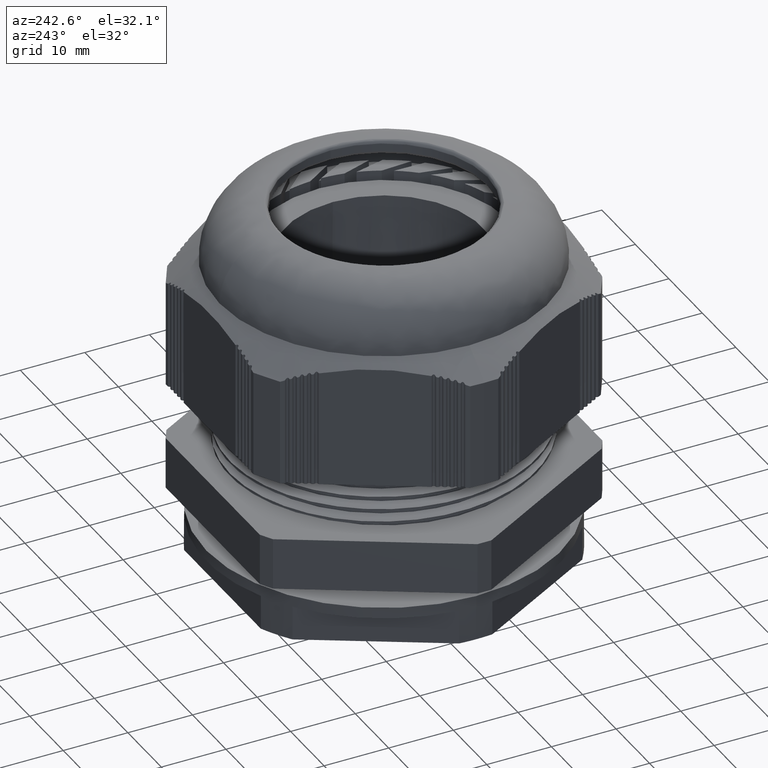
[diagram: clean part render]
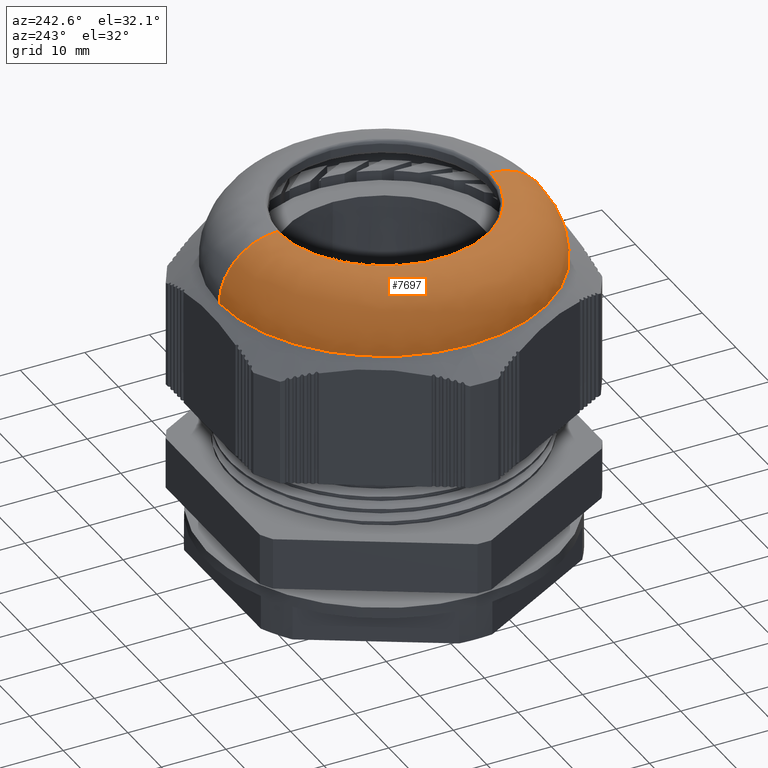
[diagram: same view with one face highlighted and labeled with its STEP entity id]
A machine part, auxiliary view. The second image highlights one B-rep face of the part: STEP entity #7697.
In plain terms, the highlighted face is a freeform B-spline surface patch.
Its self-contained STEP definition (entity closure, byte-faithful):
#648 = CARTESIAN_POINT ( 'NONE',  ( 3.122849337825750200E-015, 25.50000000000000000, 49.93713426674091200 ) ) ;
#650 = CARTESIAN_POINT ( 'NONE',  ( -2.584435626409810100E-046, -25.49999999999999600, 49.93713426674089800 ) ) ;
#661 = CARTESIAN_POINT ( 'NONE',  ( 2.571758278209440900E-015, 16.50000000000000000, 58.93713426674092700 ) ) ;
#689 = CARTESIAN_POINT ( 'NONE',  ( -25.49999999999999600, -4.429638872090642500E-030, 49.93713426674090500 ) ) ;
#697 = CARTESIAN_POINT ( 'NONE',  ( -2.350988701644649500E-032, -16.50000000000000000, 58.93713426674091200 ) ) ;
#7697 = ADVANCED_FACE ( 'NONE', ( #15465 ), #15350, .T. ) ;
#9114 = AXIS2_PLACEMENT_3D ( 'NONE', #23341, #23343, #23421 ) ;
#9149 = CIRCLE ( 'NONE', #9114, 25.49999999999999600 ) ;
#9184 = AXIS2_PLACEMENT_3D ( 'NONE', #23608, #23600, #23595 ) ;
#9194 = CIRCLE ( 'NONE', #9184, 8.999999999999994700 ) ;
#9195 = AXIS2_PLACEMENT_3D ( 'NONE', #23554, #23527, #23547 ) ;
#9215 = CIRCLE ( 'NONE', #9195, 16.50000000000000000 ) ;
#9216 = CIRCLE ( 'NONE', #9217, 8.999999999999998200 ) ;
#9217 = AXIS2_PLACEMENT_3D ( 'NONE', #23574, #23593, #23571 ) ;
#9248 = CIRCLE ( 'NONE', #9270, 25.49999999999999600 ) ;
#9270 = AXIS2_PLACEMENT_3D ( 'NONE', #23744, #23722, #23751 ) ;
#9820 = EDGE_CURVE ( 'NONE', #10461, #10521, #9149, .T. ) ;
#9847 = EDGE_CURVE ( 'NONE', #10483, #10506, #9215, .T. ) ;
#9857 = EDGE_CURVE ( 'NONE', #10483, #10461, #9216, .T. ) ;
#9866 = EDGE_CURVE ( 'NONE', #10506, #10498, #9194, .T. ) ;
#9890 = EDGE_CURVE ( 'NONE', #10521, #10498, #9248, .T. ) ;
#10461 = VERTEX_POINT ( 'NONE', #648 ) ;
#10483 = VERTEX_POINT ( 'NONE', #661 ) ;
#10498 = VERTEX_POINT ( 'NONE', #650 ) ;
#10506 = VERTEX_POINT ( 'NONE', #697 ) ;
#10521 = VERTEX_POINT ( 'NONE', #689 ) ;
#11130 = ORIENTED_EDGE ( 'NONE', *, *, #9820, .T. ) ;
#11137 = ORIENTED_EDGE ( 'NONE', *, *, #9890, .T. ) ;
#11147 = ORIENTED_EDGE ( 'NONE', *, *, #9866, .F. ) ;
#11158 = ORIENTED_EDGE ( 'NONE', *, *, #9847, .F. ) ;
#11192 = ORIENTED_EDGE ( 'NONE', *, *, #9857, .T. ) ;
#15350 =( BOUNDED_SURFACE ( )  B_SPLINE_SURFACE ( 3, 3, ( 
 ( #15506, #15468, #15476, #15496 ),
 ( #15508, #15503, #15493, #15491 ),
 ( #15507, #15485, #15466, #15494 ),
 ( #15505, #15509, #15481, #15469 ) ),
 .UNSPECIFIED., .F., .F., .T. ) 
 B_SPLINE_SURFACE_WITH_KNOTS ( ( 4, 4 ),
 ( 4, 4 ),
 ( 0.0000000000000000000, 1.000000000000000000 ),
 ( 0.0000000000000000000, 1.000000000000000000 ),
 .UNSPECIFIED. ) 
 GEOMETRIC_REPRESENTATION_ITEM ( )  RATIONAL_B_SPLINE_SURFACE ( (
 ( 1.000000000000000000, 0.3333333333333334300, 0.3333333333333334300, 1.000000000000000000),
 ( 0.8047378541243648300, 0.2682459513747883500, 0.2682459513747883500, 0.8047378541243648300),
 ( 0.8047378541243648300, 0.2682459513747883500, 0.2682459513747883500, 0.8047378541243648300),
 ( 1.000000000000000000, 0.3333333333333334300, 0.3333333333333334300, 1.000000000000000000) ) ) 
 REPRESENTATION_ITEM ( '' )  SURFACE ( )  );
#15465 = FACE_OUTER_BOUND ( 'NONE', #16954, .T. ) ;
#15466 = CARTESIAN_POINT ( 'NONE',  ( -50.99999999999998600, -25.49999999999998600, 55.20921220538304700 ) ) ;
#15468 = CARTESIAN_POINT ( 'NONE',  ( -32.99999999999997200, 16.49999999999999600, 58.93713426674089800 ) ) ;
#15469 = CARTESIAN_POINT ( 'NONE',  ( -6.245698675651501200E-015, -25.50000000000000000, 49.93713426674089800 ) ) ;
#15476 = CARTESIAN_POINT ( 'NONE',  ( -32.99999999999997900, -16.49999999999998600, 58.93713426674089100 ) ) ;
#15481 = CARTESIAN_POINT ( 'NONE',  ( -50.99999999999998600, -25.49999999999998200, 49.93713426674090500 ) ) ;
#15485 = CARTESIAN_POINT ( 'NONE',  ( -50.99999999999997900, 25.50000000000000400, 55.20921220538306100 ) ) ;
#15491 = CARTESIAN_POINT ( 'NONE',  ( -5.332621111668961500E-015, -21.77207793864213800, 58.93713426674090500 ) ) ;
#15493 = CARTESIAN_POINT ( 'NONE',  ( -43.54415587728426800, -21.77207793864212700, 58.93713426674089800 ) ) ;
#15494 = CARTESIAN_POINT ( 'NONE',  ( -6.245698675651501200E-015, -25.50000000000000000, 55.20921220538303900 ) ) ;
#15496 = CARTESIAN_POINT ( 'NONE',  ( -4.041334437186265400E-015, -16.49999999999998900, 58.93713426674089800 ) ) ;
#15503 = CARTESIAN_POINT ( 'NONE',  ( -43.54415587728426100, 21.77207793864214100, 58.93713426674091200 ) ) ;
#15505 = CARTESIAN_POINT ( 'NONE',  ( 3.122849337825750600E-015, 25.50000000000000400, 49.93713426674091200 ) ) ;
#15506 = CARTESIAN_POINT ( 'NONE',  ( 2.020667218593131100E-015, 16.49999999999998900, 58.93713426674090500 ) ) ;
#15507 = CARTESIAN_POINT ( 'NONE',  ( 3.122849337825749800E-015, 25.50000000000000000, 55.20921220538305400 ) ) ;
#15508 = CARTESIAN_POINT ( 'NONE',  ( 2.666310555834479200E-015, 21.77207793864213800, 58.93713426674091200 ) ) ;
#15509 = CARTESIAN_POINT ( 'NONE',  ( -50.99999999999998600, 25.50000000000001100, 49.93713426674092700 ) ) ;
#16954 = EDGE_LOOP ( 'NONE', ( #11158, #11192, #11130, #11137, #11147 ) ) ;
#23341 = CARTESIAN_POINT ( 'NONE',  ( 1.394505337513666900E-046, 8.820920008599482500E-016, 49.93713426674090500 ) ) ;
#23343 = DIRECTION ( 'NONE',  ( -8.842653555496953700E-032, -2.102695122396130700E-016, 1.000000000000000000 ) ) ;
#23421 = DIRECTION ( 'NONE',  ( -1.093729676481307900E-047, -1.000000000000000000, -2.721134864277344700E-016 ) ) ;
#23527 = DIRECTION ( 'NONE',  ( -4.701977403289151100E-032, -2.168404344971009400E-016, 1.000000000000000000 ) ) ;
#23547 = DIRECTION ( 'NONE',  ( -1.360680216046936000E-047, -1.000000000000000000, -4.205390244792259800E-016 ) ) ;
#23554 = CARTESIAN_POINT ( 'NONE',  ( -2.350988701644627000E-032, -1.088137656566435400E-015, 58.93713426674091900 ) ) ;
#23571 = DIRECTION ( 'NONE',  ( 1.224646799147352700E-016, 1.000000000000000000, 7.709882115452477200E-016 ) ) ;
#23574 = CARTESIAN_POINT ( 'NONE',  ( 2.020667218593133500E-015, 16.50000000000000400, 49.93713426674090500 ) ) ;
#23593 = DIRECTION ( 'NONE',  ( -1.000000000000000000, 1.224646799147353200E-016, -6.267594704271780900E-032 ) ) ;
#23595 = DIRECTION ( 'NONE',  ( -5.468648382406540500E-048, -1.000000000000000000, 0.0000000000000000000 ) ) ;
#23600 = DIRECTION ( 'NONE',  ( 1.000000000000000000, -2.406205288258878700E-047, 8.842653555496953700E-032 ) ) ;
#23608 = CARTESIAN_POINT ( 'NONE',  ( -9.023269830970791300E-047, -16.50000000000000000, 49.93713426674089800 ) ) ;
#23722 = DIRECTION ( 'NONE',  ( -8.842653555496953700E-032, -2.102695122396130700E-016, 1.000000000000000000 ) ) ;
#23744 = CARTESIAN_POINT ( 'NONE',  ( 1.394505337513666900E-046, 8.820920008599482500E-016, 49.93713426674090500 ) ) ;
#23751 = DIRECTION ( 'NONE',  ( -1.093729676481307900E-047, -1.000000000000000000, -2.721134864277344700E-016 ) ) ;